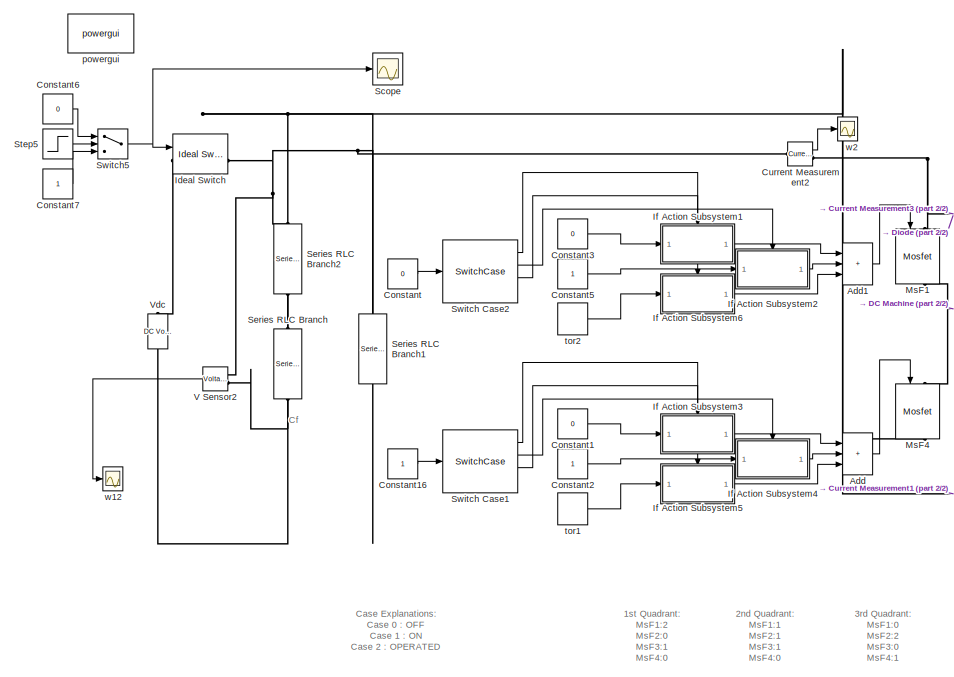
[diagram: root canvas - part 1/2, left side, full height]
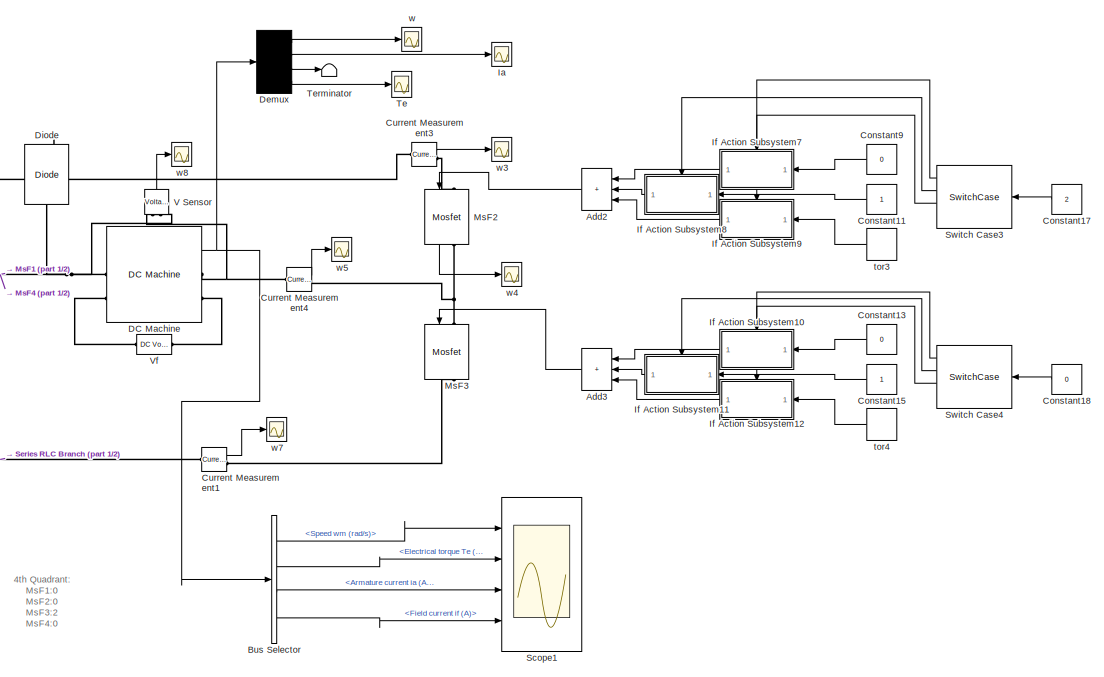
[diagram: root canvas - part 2/2, right side, full height]
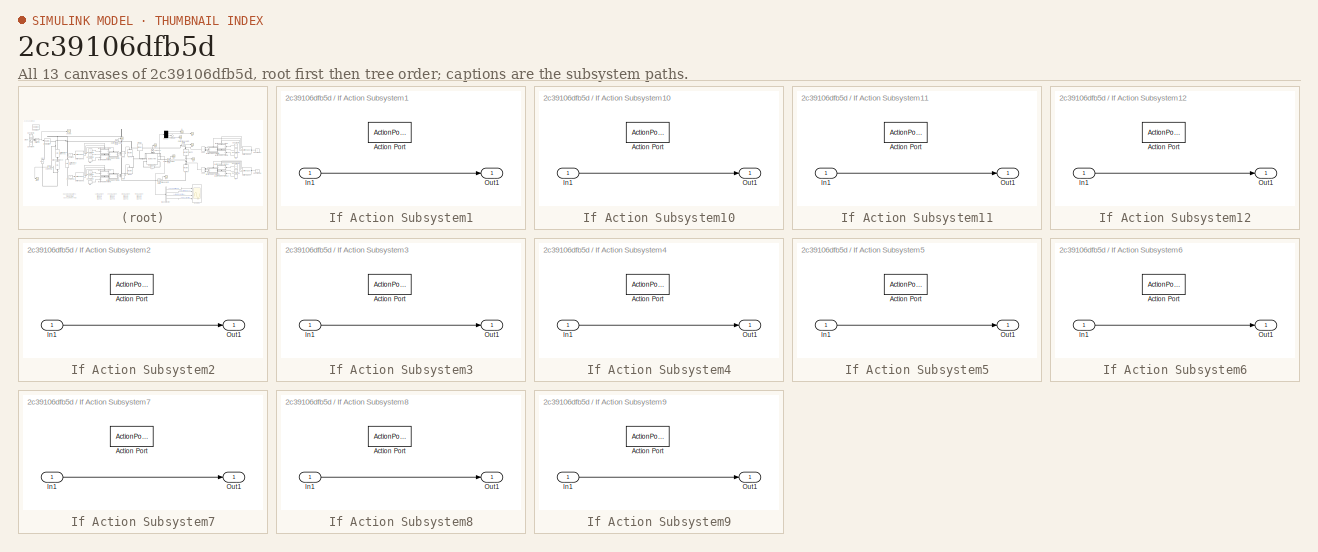
[diagram: thumbnail index - all 13 canvases of the model, root first then tree order]
MODEL slx_2c39106dfb5d
KIND model
CONFIG AbsTol = auto
CONFIG EnableMultiTasking = on
CONFIG FixedStep = auto
CONFIG MaxStep = auto
CONFIG MinStep = auto
CONFIG RelTol = 1e-3
CONFIG SampleTimeConstraint = Unconstrained
CONFIG Solver = ode45
CONFIG SolverName = ode45
CONFIG StartTime = 0.0
CONFIG StopTime = 4
WORKSPACE source: mxarray member
WORKSPACE T = 20
BLOCK [Sum] Add
  IconShape = rectangular
  Inputs = +++
  Ports = [3, 1]
BLOCK [Sum] Add1
  IconShape = rectangular
  Inputs = +++
  Ports = [3, 1]
BLOCK [Sum] Add2
  IconShape = rectangular
  Inputs = +++
  Ports = [3, 1]
BLOCK [Sum] Add3
  IconShape = rectangular
  Inputs = +++
  Ports = [3, 1]
BLOCK [BusSelector] Bus Selector
  OutputSignals = Speed wm (rad/s),Electrical torque Te (n m),Armature current ia (A),Field current if (A)
  Ports = [1, 4]
BLOCK [Constant] Constant
  Value = 0
BLOCK [Constant] Constant1
  Value = 0
BLOCK [Constant] Constant11
BLOCK [Constant] Constant13
  Value = 0
BLOCK [Constant] Constant15
BLOCK [Constant] Constant16
BLOCK [Constant] Constant17
  Value = 2
BLOCK [Constant] Constant18
  Value = 0
BLOCK [Constant] Constant2
BLOCK [Constant] Constant3
  Value = 0
BLOCK [Constant] Constant5
BLOCK [Constant] Constant6
  Value = 0
BLOCK [Constant] Constant7
BLOCK [Constant] Constant9
  Value = 0
BLOCK [Reference] Current Measurement1  REF=powerlib/Measurements/Current Measurement
  Ports = [0, 1, 0, 0, 0, 1, 1]
  SourceBlock = powerlib/Measurements/Current Measurement
  SourceType = Current Measurement
BLOCK [Reference] Current Measurement2  REF=powerlib/Measurements/Current Measurement
  Ports = [0, 1, 0, 0, 0, 1, 1]
  SourceBlock = powerlib/Measurements/Current Measurement
  SourceType = Current Measurement
BLOCK [Reference] Current Measurement3  REF=powerlib/Measurements/Current Measurement
  Ports = [0, 1, 0, 0, 0, 1, 1]
  SourceBlock = powerlib/Measurements/Current Measurement
  SourceType = Current Measurement
BLOCK [Reference] Current Measurement4  REF=powerlib/Measurements/Current Measurement
  Ports = [0, 1, 0, 0, 0, 1, 1]
  SourceBlock = powerlib/Measurements/Current Measurement
  SourceType = Current Measurement
BLOCK [Reference] DC Machine  REF=powerlib/Machines/DC Machine
  AttributesFormatString = \n
  Ports = [1, 1, 0, 0, 0, 2, 2]
  SourceBlock = powerlib/Machines/DC Machine
  SourceType = DC machine
BLOCK [Demux] Demux
  DisplayOption = none
  Ports = [1, 4]
BLOCK [Reference] Diode  REF=powerlib/Power Electronics/Diode
  Ports = [0, 1, 0, 0, 0, 1, 1]
  SourceBlock = powerlib/Power Electronics/Diode
  SourceType = Diode
BLOCK [Scope] Ia
  Floating = off
  NumInputPorts = 1
  Ports = [1]
  ScopeSpecificationString = Simulink.scopes.TimeScopeBlockCfg('CurrentConfiguration', extmgr.ConfigurationSet(extmgr.Configuration('Core','General UI',true),extmgr.Configuration('Core','Source UI',true),extmgr.Configuration('Sources','WiredSimulink',true,'DataLogging',true,'DataLoggingVariableName','w11','DataLoggingSaveFormat','Array','DataLoggingMaxPoints','500000','DataLoggingDecimation','1','DataLoggingDecimateData',true...<+1849ch>
BLOCK [Reference] Ideal Switch  REF=powerlib/Power Electronics/Ideal Switch
  Ports = [1, 1, 0, 0, 0, 1, 1]
  SourceBlock = powerlib/Power Electronics/Ideal Switch
  SourceType = Ideal Switch
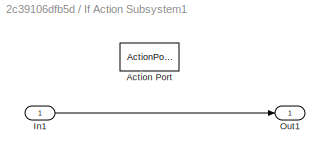
BLOCK [SubSystem] If Action Subsystem1
  Ports = [1, 1, 0, 0, 0, 0, 0, 1]
  TreatAsAtomicUnit = on
BLOCK [ActionPort] If Action Subsystem1/Action Port
  ActionPortLabel = case [ 0 ]:
BLOCK [Inport] If Action Subsystem1/In1
BLOCK [Outport] If Action Subsystem1/Out1
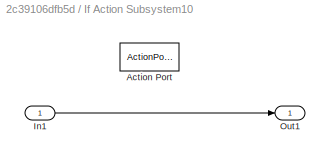
BLOCK [SubSystem] If Action Subsystem10
  Ports = [1, 1, 0, 0, 0, 0, 0, 1]
  TreatAsAtomicUnit = on
BLOCK [ActionPort] If Action Subsystem10/Action Port
  ActionPortLabel = case [ 0 ]:
BLOCK [Inport] If Action Subsystem10/In1
BLOCK [Outport] If Action Subsystem10/Out1
BLOCK [SubSystem] If Action Subsystem11
  Ports = [1, 1, 0, 0, 0, 0, 0, 1]
  TreatAsAtomicUnit = on
BLOCK [ActionPort] If Action Subsystem11/Action Port
  ActionPortLabel = case [ 1 ]:
BLOCK [Inport] If Action Subsystem11/In1
BLOCK [Outport] If Action Subsystem11/Out1
BLOCK [SubSystem] If Action Subsystem12
  Ports = [1, 1, 0, 0, 0, 0, 0, 1]
  TreatAsAtomicUnit = on
BLOCK [ActionPort] If Action Subsystem12/Action Port
  ActionPortLabel = case [ 2 ]:
BLOCK [Inport] If Action Subsystem12/In1
BLOCK [Outport] If Action Subsystem12/Out1
BLOCK [SubSystem] If Action Subsystem2
  Ports = [1, 1, 0, 0, 0, 0, 0, 1]
  TreatAsAtomicUnit = on
BLOCK [ActionPort] If Action Subsystem2/Action Port
  ActionPortLabel = case [ 1 ]:
BLOCK [Inport] If Action Subsystem2/In1
BLOCK [Outport] If Action Subsystem2/Out1
BLOCK [SubSystem] If Action Subsystem3
  Ports = [1, 1, 0, 0, 0, 0, 0, 1]
  TreatAsAtomicUnit = on
BLOCK [ActionPort] If Action Subsystem3/Action Port
  ActionPortLabel = case [ 0 ]:
BLOCK [Inport] If Action Subsystem3/In1
BLOCK [Outport] If Action Subsystem3/Out1
BLOCK [SubSystem] If Action Subsystem4
  Ports = [1, 1, 0, 0, 0, 0, 0, 1]
  TreatAsAtomicUnit = on
BLOCK [ActionPort] If Action Subsystem4/Action Port
  ActionPortLabel = case [ 1 ]:
BLOCK [Inport] If Action Subsystem4/In1
BLOCK [Outport] If Action Subsystem4/Out1
BLOCK [SubSystem] If Action Subsystem5
  Ports = [1, 1, 0, 0, 0, 0, 0, 1]
  TreatAsAtomicUnit = on
BLOCK [ActionPort] If Action Subsystem5/Action Port
  ActionPortLabel = case [ 2 ]:
BLOCK [Inport] If Action Subsystem5/In1
BLOCK [Outport] If Action Subsystem5/Out1
BLOCK [SubSystem] If Action Subsystem6
  Ports = [1, 1, 0, 0, 0, 0, 0, 1]
  TreatAsAtomicUnit = on
BLOCK [ActionPort] If Action Subsystem6/Action Port
  ActionPortLabel = case [ 2 ]:
BLOCK [Inport] If Action Subsystem6/In1
BLOCK [Outport] If Action Subsystem6/Out1
BLOCK [SubSystem] If Action Subsystem7
  Ports = [1, 1, 0, 0, 0, 0, 0, 1]
  TreatAsAtomicUnit = on
BLOCK [ActionPort] If Action Subsystem7/Action Port
  ActionPortLabel = case [ 0 ]:
BLOCK [Inport] If Action Subsystem7/In1
BLOCK [Outport] If Action Subsystem7/Out1
BLOCK [SubSystem] If Action Subsystem8
  Ports = [1, 1, 0, 0, 0, 0, 0, 1]
  TreatAsAtomicUnit = on
BLOCK [ActionPort] If Action Subsystem8/Action Port
  ActionPortLabel = case [ 1 ]:
BLOCK [Inport] If Action Subsystem8/In1
BLOCK [Outport] If Action Subsystem8/Out1
BLOCK [SubSystem] If Action Subsystem9
  Ports = [1, 1, 0, 0, 0, 0, 0, 1]
  TreatAsAtomicUnit = on
BLOCK [ActionPort] If Action Subsystem9/Action Port
  ActionPortLabel = case [ 2 ]:
BLOCK [Inport] If Action Subsystem9/In1
BLOCK [Outport] If Action Subsystem9/Out1
BLOCK [Reference] MsF1  REF=powerlib/Power Electronics/Mosfet
  Ports = [1, 1, 0, 0, 0, 1, 1]
  SourceBlock = powerlib/Power Electronics/Mosfet
  SourceType = Mosfet
BLOCK [Reference] MsF2  REF=powerlib/Power Electronics/Mosfet
  Ports = [1, 1, 0, 0, 0, 1, 1]
  SourceBlock = powerlib/Power Electronics/Mosfet
  SourceType = Mosfet
BLOCK [Reference] MsF3  REF=powerlib/Power Electronics/Mosfet
  Ports = [1, 1, 0, 0, 0, 1, 1]
  SourceBlock = powerlib/Power Electronics/Mosfet
  SourceType = Mosfet
BLOCK [Reference] MsF4  REF=powerlib/Power Electronics/Mosfet
  Ports = [1, 1, 0, 0, 0, 1, 1]
  SourceBlock = powerlib/Power Electronics/Mosfet
  SourceType = Mosfet
BLOCK [Scope] Scope
  Floating = off
  NumInputPorts = 1
  Ports = [1]
  ScopeSpecificationString = Simulink.scopes.TimeScopeBlockCfg('CurrentConfiguration', extmgr.ConfigurationSet(extmgr.Configuration('Core','General UI',true),extmgr.Configuration('Core','Source UI',true),extmgr.Configuration('Sources','WiredSimulink',true,'DataLoggingVariableName','ScopeData1'),extmgr.Configuration('Visuals','Time Domain',true,'SerializedDisplays',{struct('MinYLimReal','-0.125','MaxYLimReal','1.125','YLabelRe...<+1354ch>
BLOCK [Scope] Scope1
  Floating = off
  NumInputPorts = 4
  Ports = [4]
  ScopeSpecificationString = Simulink.scopes.TimeScopeBlockCfg('CurrentConfiguration', extmgr.ConfigurationSet(extmgr.Configuration('Core','General UI',true),extmgr.Configuration('Core','Source UI',true),extmgr.Configuration('Sources','WiredSimulink',true,'DataLoggingVariableName','ScopeData1'),extmgr.Configuration('Visuals','Time Domain',true,'SerializedDisplays',{struct('MinYLimReal','-462.66298','MaxYLimReal','52.51811','Y...<+3586ch>
BLOCK [Reference] Series RLC Branch  REF=powerlib/Elements/Series RLC Branch
  Ports = [0, 0, 0, 0, 0, 1, 1]
  SourceBlock = powerlib/Elements/Series RLC Branch
  SourceType = Series RLC Branch
BLOCK [Reference] Series RLC Branch1  REF=powerlib/Elements/Series RLC Branch
  Ports = [0, 0, 0, 0, 0, 1, 1]
  SourceBlock = powerlib/Elements/Series RLC Branch
  SourceType = Series RLC Branch
BLOCK [Reference] Series RLC Branch2  REF=powerlib/Elements/Series RLC Branch
  Ports = [0, 0, 0, 0, 0, 1, 1]
  SourceBlock = powerlib/Elements/Series RLC Branch
  SourceType = Series RLC Branch
BLOCK [Step] Step5
  SampleTime = 0
  Time = 1%3
BLOCK [SwitchCase] Switch Case1
  CaseConditions = {0,1,2}
  Ports = [1, 4]
BLOCK [SwitchCase] Switch Case2
  CaseConditions = {0,1,2}
  Ports = [1, 4]
BLOCK [SwitchCase] Switch Case3
  CaseConditions = {0,1,2}
  Ports = [1, 4]
BLOCK [SwitchCase] Switch Case4
  CaseConditions = {0,1,2}
  Ports = [1, 4]
BLOCK [Switch] Switch5
  InputSameDT = off
  SaturateOnIntegerOverflow = off
  Threshold = 1
BLOCK [Scope] Te
  Floating = off
  NumInputPorts = 1
  Ports = [1]
  ScopeSpecificationString = Simulink.scopes.TimeScopeBlockCfg('CurrentConfiguration', extmgr.ConfigurationSet(extmgr.Configuration('Core','General UI',true),extmgr.Configuration('Core','Source UI',true),extmgr.Configuration('Sources','WiredSimulink',true,'DataLogging',true,'DataLoggingVariableName','Tm','DataLoggingSaveFormat','Array','DataLoggingMaxPoints','500000','DataLoggingDecimation','1','DataLoggingDecimateData',true)...<+1796ch>
BLOCK [Terminator] Terminator
BLOCK [Reference] V Sensor  REF=powerlib/Measurements/Voltage Measurement
  Ports = [0, 1, 0, 0, 0, 2]
  SourceBlock = powerlib/Measurements/Voltage Measurement
  SourceType = Voltage Measurement
BLOCK [Reference] V Sensor2  REF=powerlib/Measurements/Voltage Measurement
  Ports = [0, 1, 0, 0, 0, 2]
  SourceBlock = powerlib/Measurements/Voltage Measurement
  SourceType = Voltage Measurement
BLOCK [Reference] Vdc  REF=powerlib/Electrical Sources/DC Voltage Source
  Ports = [0, 0, 0, 0, 0, 1, 1]
  SourceBlock = powerlib/Electrical Sources/DC Voltage Source
  SourceType = DC Voltage Source
BLOCK [Reference] Vf  REF=powerlib/Electrical Sources/DC Voltage Source
  Ports = [0, 0, 0, 0, 0, 1, 1]
  SourceBlock = powerlib/Electrical Sources/DC Voltage Source
  SourceType = DC Voltage Source
BLOCK [Reference] powergui  REF=powerlib/powergui
  Ports = []
  Priority = 1
  SourceBlock = powerlib/powergui
  SourceType = PSB option menu block
BLOCK [DiscretePulseGenerator] tor1
  Period = 0.0001
  Ports = [0, 1]
  PulseType = Time based
  PulseWidth = 80
BLOCK [DiscretePulseGenerator] tor2
  Period = 0.0001
  Ports = [0, 1]
  PulseType = Time based
  PulseWidth = 80
BLOCK [DiscretePulseGenerator] tor3
  Period = 0.0001
  Ports = [0, 1]
  PulseType = Time based
  PulseWidth = 80
BLOCK [DiscretePulseGenerator] tor4
  Period = 0.0001
  Ports = [0, 1]
  PulseType = Time based
  PulseWidth = 80
BLOCK [Scope] w
  Floating = off
  NumInputPorts = 1
  Ports = [1]
  ScopeSpecificationString = Simulink.scopes.TimeScopeBlockCfg('CurrentConfiguration', extmgr.ConfigurationSet(extmgr.Configuration('Core','General UI',true),extmgr.Configuration('Core','Source UI',true),extmgr.Configuration('Sources','WiredSimulink',true,'DataLogging',true,'DataLoggingVariableName','w1','DataLoggingSaveFormat','Array','DataLoggingMaxPoints','500000','DataLoggingDecimation','1','DataLoggingDecimateData',true)...<+1852ch>
BLOCK [Scope] w12
  Floating = off
  NumInputPorts = 1
  Ports = [1]
  ScopeSpecificationString = Simulink.scopes.TimeScopeBlockCfg('CurrentConfiguration', extmgr.ConfigurationSet(extmgr.Configuration('Core','General UI',true),extmgr.Configuration('Core','Source UI',true),extmgr.Configuration('Sources','WiredSimulink',true,'DataLogging',true,'DataLoggingVariableName','w12','DataLoggingSaveFormat','Array','DataLoggingMaxPoints','500000','DataLoggingDecimation','1','DataLoggingDecimateData',true...<+1891ch>
BLOCK [Scope] w2
  Floating = off
  NumInputPorts = 1
  Ports = [1]
  ScopeSpecificationString = Simulink.scopes.TimeScopeBlockCfg('CurrentConfiguration', extmgr.ConfigurationSet(extmgr.Configuration('Core','General UI',true),extmgr.Configuration('Core','Source UI',true),extmgr.Configuration('Sources','WiredSimulink',true,'DataLogging',true,'DataLoggingVariableName','w2','DataLoggingSaveFormat','Array','DataLoggingMaxPoints','500000','DataLoggingDecimation','1','DataLoggingDecimateData',true)...<+1872ch>
BLOCK [Scope] w3
  Floating = off
  NumInputPorts = 1
  Ports = [1]
  ScopeSpecificationString = Simulink.scopes.TimeScopeBlockCfg('CurrentConfiguration', extmgr.ConfigurationSet(extmgr.Configuration('Core','General UI',true),extmgr.Configuration('Core','Source UI',true),extmgr.Configuration('Sources','WiredSimulink',true,'DataLogging',true,'DataLoggingVariableName','w3','DataLoggingSaveFormat','Array','DataLoggingMaxPoints','500000','DataLoggingDecimation','1','DataLoggingDecimateData',true)...<+1774ch>
BLOCK [Scope] w4
  Floating = off
  NumInputPorts = 1
  Ports = [1]
  ScopeSpecificationString = Simulink.scopes.TimeScopeBlockCfg('CurrentConfiguration', extmgr.ConfigurationSet(extmgr.Configuration('Core','General UI',true),extmgr.Configuration('Core','Source UI',true),extmgr.Configuration('Sources','WiredSimulink',true,'DataLogging',true,'DataLoggingVariableName','w4','DataLoggingSaveFormat','Array','DataLoggingMaxPoints','500000','DataLoggingDecimation','1','DataLoggingDecimateData',true)...<+1857ch>
BLOCK [Scope] w5
  Floating = off
  NumInputPorts = 1
  Ports = [1]
  ScopeSpecificationString = Simulink.scopes.TimeScopeBlockCfg('CurrentConfiguration', extmgr.ConfigurationSet(extmgr.Configuration('Core','General UI',true),extmgr.Configuration('Core','Source UI',true),extmgr.Configuration('Sources','WiredSimulink',true,'DataLogging',true,'DataLoggingVariableName','w5','DataLoggingSaveFormat','Array','DataLoggingMaxPoints','500000','DataLoggingDecimation','1','DataLoggingDecimateData',true)...<+1836ch>
BLOCK [Scope] w7
  Floating = off
  NumInputPorts = 1
  Ports = [1]
  ScopeSpecificationString = Simulink.scopes.TimeScopeBlockCfg('CurrentConfiguration', extmgr.ConfigurationSet(extmgr.Configuration('Core','General UI',true),extmgr.Configuration('Core','Source UI',true),extmgr.Configuration('Sources','WiredSimulink',true,'DataLogging',true,'DataLoggingVariableName','w7','DataLoggingSaveFormat','Array','DataLoggingMaxPoints','500000','DataLoggingDecimation','1','DataLoggingDecimateData',true)...<+1836ch>
BLOCK [Scope] w8
  Floating = off
  NumInputPorts = 1
  Ports = [1]
  ScopeSpecificationString = Simulink.scopes.TimeScopeBlockCfg('CurrentConfiguration', extmgr.ConfigurationSet(extmgr.Configuration('Core','General UI',true),extmgr.Configuration('Core','Source UI',true),extmgr.Configuration('Sources','WiredSimulink',true,'DataLogging',true,'DataLoggingVariableName','w8','DataLoggingSaveFormat','Array','DataLoggingMaxPoints','500000','DataLoggingDecimation','1','DataLoggingDecimateData',true)...<+1853ch>
ANNOTATION (root): 1st Quadrant: MsF1:2 MsF2:0 MsF3:1 MsF4:0
ANNOTATION (root): 2nd Quadrant: MsF1:1 MsF2:1 MsF3:1 MsF4:0
ANNOTATION (root): 3rd Quadrant: MsF1:0 MsF2:2 MsF3:0 MsF4:1
ANNOTATION (root): 4th Quadrant: MsF1:0 MsF2:0 MsF3:2 MsF4:0
ANNOTATION (root): Case Explanations: Case 0 : OFF Case 1 : ON Case 2 : OPERATED
ANNOTATION (root): Cf
LINE Add1:1 -> MsF1:1
LINE Add2:1 -> MsF2:1
LINE Add3:1 -> MsF3:1
LINE Add:1 -> MsF4:1
LINE Bus Selector:1 -> Scope1:1
LINE Bus Selector:2 -> Scope1:2
LINE Bus Selector:3 -> Scope1:3
LINE Bus Selector:4 -> Scope1:4
LINE Constant11:1 -> If Action Subsystem8:1
LINE Constant13:1 -> If Action Subsystem10:1
LINE Constant15:1 -> If Action Subsystem11:1
LINE Constant16:1 -> Switch Case1:1
LINE Constant17:1 -> Switch Case3:1
LINE Constant18:1 -> Switch Case4:1
LINE Constant1:1 -> If Action Subsystem3:1
LINE Constant2:1 -> If Action Subsystem4:1
LINE Constant3:1 -> If Action Subsystem1:1
LINE Constant5:1 -> If Action Subsystem2:1
LINE Constant6:1 -> Switch5:1
LINE Constant7:1 -> Switch5:3
LINE Constant9:1 -> If Action Subsystem7:1
LINE Constant:1 -> Switch Case2:1
LINE Current Measurement1:1 -> w7:1
LINE Current Measurement2:1 -> w2:1
LINE Current Measurement3:1 -> w3:1
LINE Current Measurement4:1 -> w5:1
NET DC Machine:1 -> Bus Selector:1, Demux:1
LINE Demux:1 -> w:1
LINE Demux:2 -> Ia:1
LINE Demux:3 -> Terminator:1
LINE Demux:4 -> Te:1
LINE If Action Subsystem1/In1:1 -> If Action Subsystem1/Out1:1
LINE If Action Subsystem10/In1:1 -> If Action Subsystem10/Out1:1
LINE If Action Subsystem10:1 -> Add3:1
LINE If Action Subsystem11/In1:1 -> If Action Subsystem11/Out1:1
LINE If Action Subsystem11:1 -> Add3:2
LINE If Action Subsystem12/In1:1 -> If Action Subsystem12/Out1:1
LINE If Action Subsystem12:1 -> Add3:3
LINE If Action Subsystem1:1 -> Add1:1
LINE If Action Subsystem2/In1:1 -> If Action Subsystem2/Out1:1
LINE If Action Subsystem2:1 -> Add1:2
LINE If Action Subsystem3/In1:1 -> If Action Subsystem3/Out1:1
LINE If Action Subsystem3:1 -> Add:1
LINE If Action Subsystem4/In1:1 -> If Action Subsystem4/Out1:1
LINE If Action Subsystem4:1 -> Add:2
LINE If Action Subsystem5/In1:1 -> If Action Subsystem5/Out1:1
LINE If Action Subsystem5:1 -> Add:3
LINE If Action Subsystem6/In1:1 -> If Action Subsystem6/Out1:1
LINE If Action Subsystem6:1 -> Add1:3
LINE If Action Subsystem7/In1:1 -> If Action Subsystem7/Out1:1
LINE If Action Subsystem7:1 -> Add2:1
LINE If Action Subsystem8/In1:1 -> If Action Subsystem8/Out1:1
LINE If Action Subsystem8:1 -> Add2:2
LINE If Action Subsystem9/In1:1 -> If Action Subsystem9/Out1:1
LINE If Action Subsystem9:1 -> Add2:3
LINE MsF2:1 -> w4:1
LINE Step5:1 -> Switch5:2
LINE Switch Case1:1 -> If Action Subsystem3:ifaction
LINE Switch Case1:2 -> If Action Subsystem4:ifaction
LINE Switch Case1:3 -> If Action Subsystem5:ifaction
LINE Switch Case2:1 -> If Action Subsystem1:ifaction
LINE Switch Case2:2 -> If Action Subsystem2:ifaction
LINE Switch Case2:3 -> If Action Subsystem6:ifaction
LINE Switch Case3:1 -> If Action Subsystem7:ifaction
LINE Switch Case3:2 -> If Action Subsystem8:ifaction
LINE Switch Case3:3 -> If Action Subsystem9:ifaction
LINE Switch Case4:1 -> If Action Subsystem10:ifaction
LINE Switch Case4:2 -> If Action Subsystem11:ifaction
LINE Switch Case4:3 -> If Action Subsystem12:ifaction
NET Switch5:1 -> Ideal Switch:1, Scope:1
LINE V Sensor2:1 -> w12:1
LINE V Sensor:1 -> w8:1
LINE tor1:1 -> If Action Subsystem5:1
LINE tor2:1 -> If Action Subsystem6:1
LINE tor3:1 -> If Action Subsystem9:1
LINE tor4:1 -> If Action Subsystem12:1
PNET net1: Current Measurement1:LConn1 -- MsF4:RConn1 -- Series RLC Branch1:RConn1 -- Series RLC Branch:RConn1 -- V Sensor2:LConn2 -- Vdc:LConn1
PLINE Current Measurement1:RConn1 -- MsF3:RConn1
PNET net2: Current Measurement2:LConn1 -- Ideal Switch:RConn1 -- Series RLC Branch1:LConn1 -- Series RLC Branch2:LConn1 -- V Sensor2:LConn1
PNET net3: Current Measurement2:RConn1 -- Current Measurement3:LConn1 -- Diode:RConn1 -- MsF1:LConn1
PLINE Current Measurement3:RConn1 -- MsF2:LConn1
PNET net4: Current Measurement4:LConn1 -- DC Machine:RConn1 -- V Sensor:LConn2
PNET net5: Current Measurement4:RConn1 -- MsF2:RConn1 -- MsF3:LConn1
PNET net6: DC Machine:LConn1 -- Diode:LConn1 -- MsF1:RConn1 -- MsF4:LConn1 -- V Sensor:LConn1
PLINE DC Machine:LConn2 -- Vf:RConn1
PLINE DC Machine:RConn2 -- Vf:LConn1
PLINE Ideal Switch:LConn1 -- Vdc:RConn1
PLINE Series RLC Branch2:RConn1 -- Series RLC Branch:LConn1
note: NET lines group one-source signal fan-out (src -> all destinations, sorted); 1:1 wires keep LINE; PNET lines group multi-terminal physical nets as a canonical sorted terminal list (undirected conserving connections); 2-terminal nets keep the pairwise PLINE form
